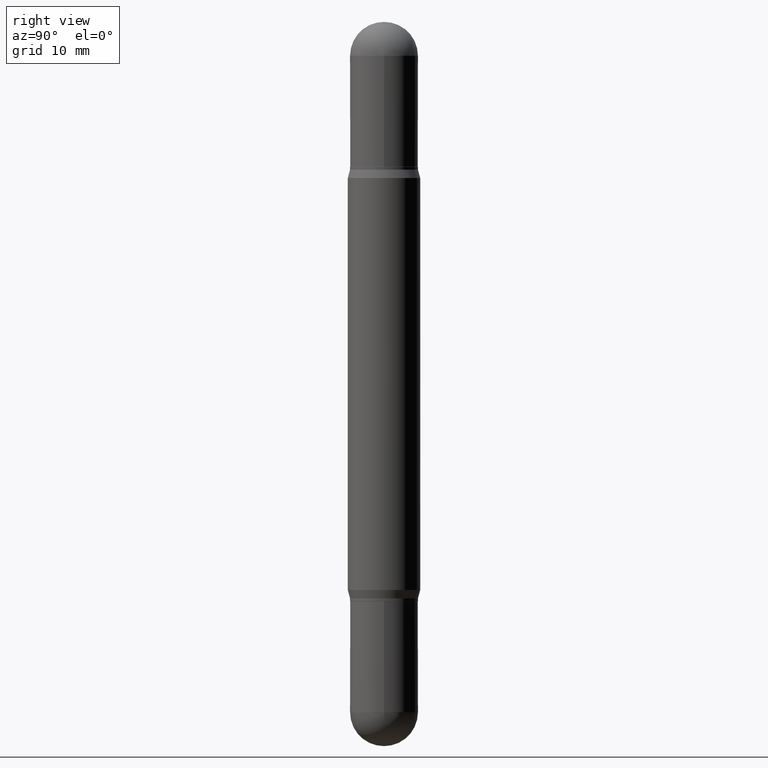
[diagram: clean part render]
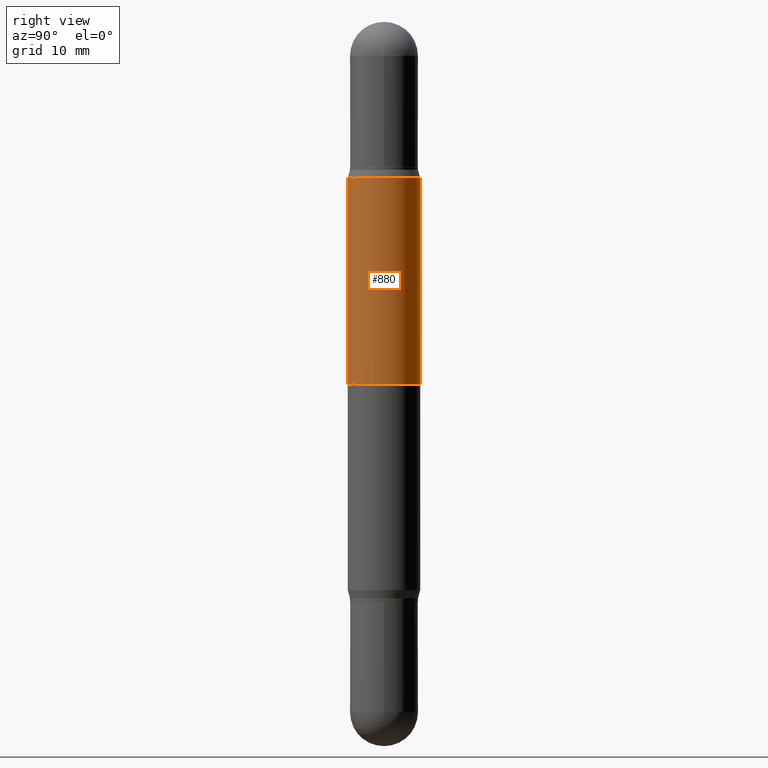
[diagram: same view with one face highlighted and labeled with its STEP entity id]
A machine part, right view. The second image highlights one B-rep face of the part: STEP entity #880.
In plain terms, the highlighted cylindrical surface (edge-blend (fillet) strip) has radius 3.175 mm, axis along (-0, -0, -1).
Its self-contained STEP definition (entity closure, byte-faithful):
#7 = VECTOR ( 'NONE', #966, 39.37007874015748143 ) ;
#73 = VERTEX_POINT ( 'NONE', #879 ) ;
#87 = VERTEX_POINT ( 'NONE', #191 ) ;
#191 = CARTESIAN_POINT ( 'NONE',  ( 8.575622497214892700E-16, 0.1249999999999980987, -0.5391099962990379968 ) ) ;
#201 = FACE_OUTER_BOUND ( 'NONE', #398, .T. ) ;
#239 = CARTESIAN_POINT ( 'NONE',  ( -8.728703347107832402E-16, -0.1250000000000087153, -2.499999999999999556 ) ) ;
#249 = AXIS2_PLACEMENT_3D ( 'NONE', #972, #702, #627 ) ;
#330 = CARTESIAN_POINT ( 'NONE',  ( -8.728703347107353169E-16, -0.1250000000000018874, -0.5391099962990372196 ) ) ;
#341 = DIRECTION ( 'NONE',  ( -2.445630722844356315E-29, -3.479846340849554879E-15, -1.000000000000000000 ) ) ;
#398 = EDGE_LOOP ( 'NONE', ( #994, #422, #1079, #807 ) ) ;
#415 = CARTESIAN_POINT ( 'NONE',  ( 8.575622497214805925E-16, 0.1249999999999956285, -1.250000000000000666 ) ) ;
#422 = ORIENTED_EDGE ( 'NONE', *, *, #729, .F. ) ;
#435 = DIRECTION ( 'NONE',  ( -6.982962677686265922E-15, -1.000000000000000000, 4.370956789862821150E-15 ) ) ;
#438 = EDGE_CURVE ( 'NONE', #1099, #73, #856, .T. ) ;
#448 = LINE ( 'NONE', #456, #7 ) ;
#456 = CARTESIAN_POINT ( 'NONE',  ( 8.575622497214413467E-16, 0.1249999999999912847, -2.500000000000000444 ) ) ;
#461 = VERTEX_POINT ( 'NONE', #415 ) ;
#483 = DIRECTION ( 'NONE',  ( -6.982962677686265922E-15, -1.000000000000000000, 3.278217592397115862E-15 ) ) ;
#547 = CYLINDRICAL_SURFACE ( 'NONE', #1094, 0.1250000000000000000 ) ;
#597 = VECTOR ( 'NONE', #341, 39.37007874015748143 ) ;
#627 = DIRECTION ( 'NONE',  ( 0.000000000000000000, 1.000000000000000000, -4.370956789862821150E-15 ) ) ;
#668 = CIRCLE ( 'NONE', #249, 0.1250000000000000000 ) ;
#702 = DIRECTION ( 'NONE',  ( -0.000000000000000000, -3.485547902910486918E-15, -1.000000000000000000 ) ) ;
#717 = CARTESIAN_POINT ( 'NONE',  ( 4.795612837169457572E-29, -1.890273853088953241E-15, -0.5391099962990375527 ) ) ;
#720 = CIRCLE ( 'NONE', #866, 0.1250000000000000000 ) ;
#729 = EDGE_CURVE ( 'NONE', #1099, #87, #720, .T. ) ;
#802 = EDGE_CURVE ( 'NONE', #87, #461, #448, .T. ) ;
#807 = ORIENTED_EDGE ( 'NONE', *, *, #836, .F. ) ;
#836 = EDGE_CURVE ( 'NONE', #461, #73, #668, .T. ) ;
#856 = LINE ( 'NONE', #239, #597 ) ;
#866 = AXIS2_PLACEMENT_3D ( 'NONE', #717, #981, #483 ) ;
#875 = DIRECTION ( 'NONE',  ( -2.445630722844356315E-29, -3.479846340849554879E-15, -1.000000000000000000 ) ) ;
#879 = CARTESIAN_POINT ( 'NONE',  ( -8.728703347107525732E-16, -0.1250000000000043576, -1.249999999999999556 ) ) ;
#880 = ADVANCED_FACE ( 'NONE', ( #201 ), #547, .T. ) ;
#966 = DIRECTION ( 'NONE',  ( -2.445630722844356315E-29, -3.479846340849554879E-15, -1.000000000000000000 ) ) ;
#972 = CARTESIAN_POINT ( 'NONE',  ( 3.057038403555445604E-29, -4.364061831214273697E-15, -1.250000000000000000 ) ) ;
#981 = DIRECTION ( 'NONE',  ( 2.445630722844356315E-29, 3.479846340849554879E-15, 1.000000000000000000 ) ) ;
#994 = ORIENTED_EDGE ( 'NONE', *, *, #802, .F. ) ;
#1044 = CARTESIAN_POINT ( 'NONE',  ( 0.000000000000000000, -8.713869757276216901E-15, -2.500000000000000000 ) ) ;
#1079 = ORIENTED_EDGE ( 'NONE', *, *, #438, .T. ) ;
#1094 = AXIS2_PLACEMENT_3D ( 'NONE', #1044, #875, #435 ) ;
#1099 = VERTEX_POINT ( 'NONE', #330 ) ;